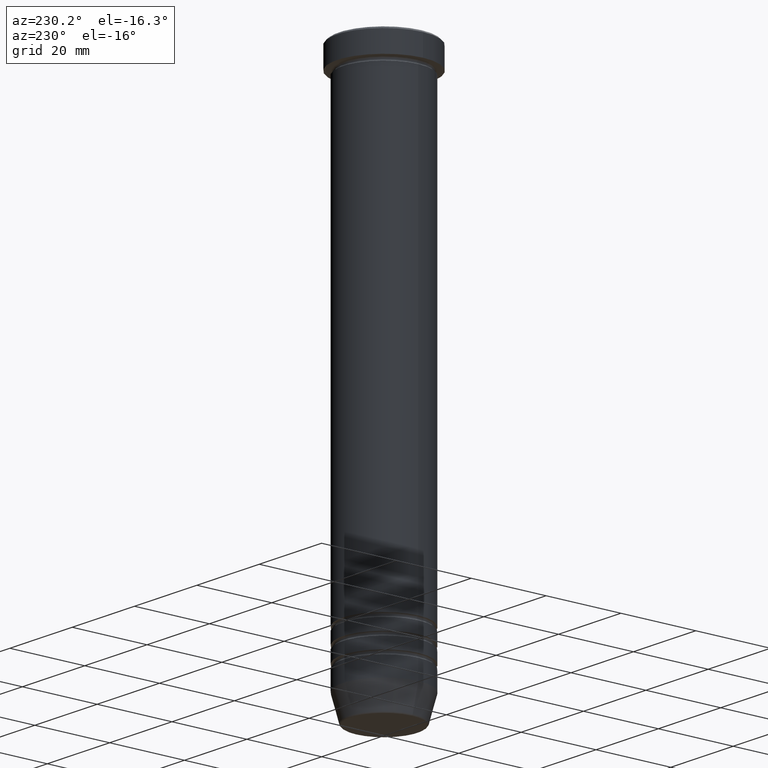
[diagram: clean part render]
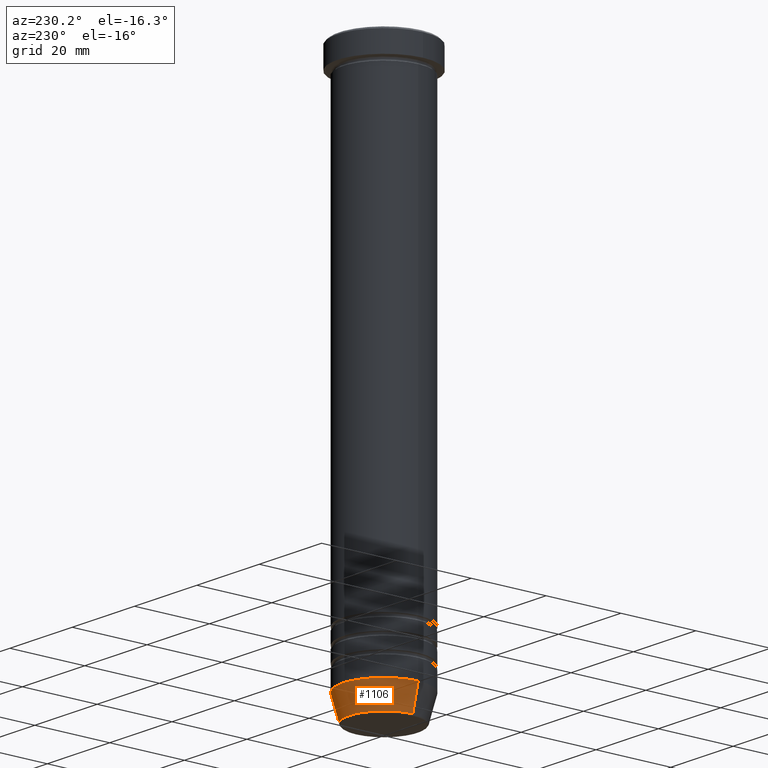
[diagram: same view with one face highlighted and labeled with its STEP entity id]
A machine part, auxiliary view. The second image highlights one B-rep face of the part: STEP entity #1106.
In plain terms, the highlighted conical surface has half-angle 15 deg.
Its self-contained STEP definition (entity closure, byte-faithful):
#10 = CONICAL_SURFACE ( 'NONE', #482, 9.124355652982135467, 0.2617993877991500740 ) ;
#41 = CIRCLE ( 'NONE', #683, 9.223655072137187716 ) ;
#48 = DIRECTION ( 'NONE',  ( 1.000000000000000000, 0.000000000000000000, 0.000000000000000000 ) ) ;
#53 = CARTESIAN_POINT ( 'NONE',  ( 9.223655072137187716, 0.000000000000000000, -145.6294095225512706 ) ) ;
#176 = EDGE_CURVE ( 'NONE', #1119, #327, #41, .T. ) ;
#205 = VECTOR ( 'NONE', #504, 1000.000000000000000 ) ;
#238 = CARTESIAN_POINT ( 'NONE',  ( -9.124355652982135467, 1.117411294470663004E-15, -146.0000000000000284 ) ) ;
#308 = DIRECTION ( 'NONE',  ( 1.000000000000000000, 0.000000000000000000, 0.000000000000000000 ) ) ;
#318 = DIRECTION ( 'NONE',  ( -0.000000000000000000, -0.000000000000000000, 1.000000000000000000 ) ) ;
#327 = VERTEX_POINT ( 'NONE', #690 ) ;
#392 = DIRECTION ( 'NONE',  ( -1.000000000000000000, 0.000000000000000000, 0.000000000000000000 ) ) ;
#450 = CIRCLE ( 'NONE', #1116, 11.00000000000000178 ) ;
#482 = AXIS2_PLACEMENT_3D ( 'NONE', #561, #745, #48 ) ;
#495 = CARTESIAN_POINT ( 'NONE',  ( 0.000000000000000000, 0.000000000000000000, -145.6294095225512706 ) ) ;
#500 = VECTOR ( 'NONE', #966, 1000.000000000000000 ) ;
#504 = DIRECTION ( 'NONE',  ( 0.2588190451025213501, 0.000000000000000000, 0.9659258262890680902 ) ) ;
#513 = ORIENTED_EDGE ( 'NONE', *, *, #801, .F. ) ;
#516 = ORIENTED_EDGE ( 'NONE', *, *, #691, .F. ) ;
#526 = LINE ( 'NONE', #238, #500 ) ;
#561 = CARTESIAN_POINT ( 'NONE',  ( 0.000000000000000000, 0.000000000000000000, -146.0000000000000284 ) ) ;
#566 = DIRECTION ( 'NONE',  ( -0.000000000000000000, -0.000000000000000000, 1.000000000000000000 ) ) ;
#628 = VERTEX_POINT ( 'NONE', #754 ) ;
#683 = AXIS2_PLACEMENT_3D ( 'NONE', #495, #318, #392 ) ;
#690 = CARTESIAN_POINT ( 'NONE',  ( -9.223655072137187716, 1.238341722557647202E-15, -145.6294095225512706 ) ) ;
#691 = EDGE_CURVE ( 'NONE', #628, #972, #450, .T. ) ;
#716 = ORIENTED_EDGE ( 'NONE', *, *, #176, .T. ) ;
#745 = DIRECTION ( 'NONE',  ( -0.000000000000000000, -0.000000000000000000, 1.000000000000000000 ) ) ;
#754 = CARTESIAN_POINT ( 'NONE',  ( 11.00000000000000178, 0.000000000000000000, -139.0000000000000000 ) ) ;
#784 = CARTESIAN_POINT ( 'NONE',  ( 9.124355652982135467, 0.000000000000000000, -146.0000000000000284 ) ) ;
#801 = EDGE_CURVE ( 'NONE', #1119, #628, #1052, .T. ) ;
#847 = EDGE_CURVE ( 'NONE', #327, #972, #526, .T. ) ;
#913 = ORIENTED_EDGE ( 'NONE', *, *, #847, .T. ) ;
#914 = CARTESIAN_POINT ( 'NONE',  ( -11.00000000000000178, 1.347111479062088602E-15, -139.0000000000000000 ) ) ;
#938 = CARTESIAN_POINT ( 'NONE',  ( 0.000000000000000000, 0.000000000000000000, -139.0000000000000000 ) ) ;
#966 = DIRECTION ( 'NONE',  ( -0.2588190451025213501, 3.169619151431772337E-17, 0.9659258262890680902 ) ) ;
#972 = VERTEX_POINT ( 'NONE', #914 ) ;
#1014 = FACE_OUTER_BOUND ( 'NONE', #1051, .T. ) ;
#1051 = EDGE_LOOP ( 'NONE', ( #716, #913, #516, #513 ) ) ;
#1052 = LINE ( 'NONE', #784, #205 ) ;
#1106 = ADVANCED_FACE ( 'NONE', ( #1014 ), #10, .T. ) ;
#1116 = AXIS2_PLACEMENT_3D ( 'NONE', #938, #566, #308 ) ;
#1119 = VERTEX_POINT ( 'NONE', #53 ) ;